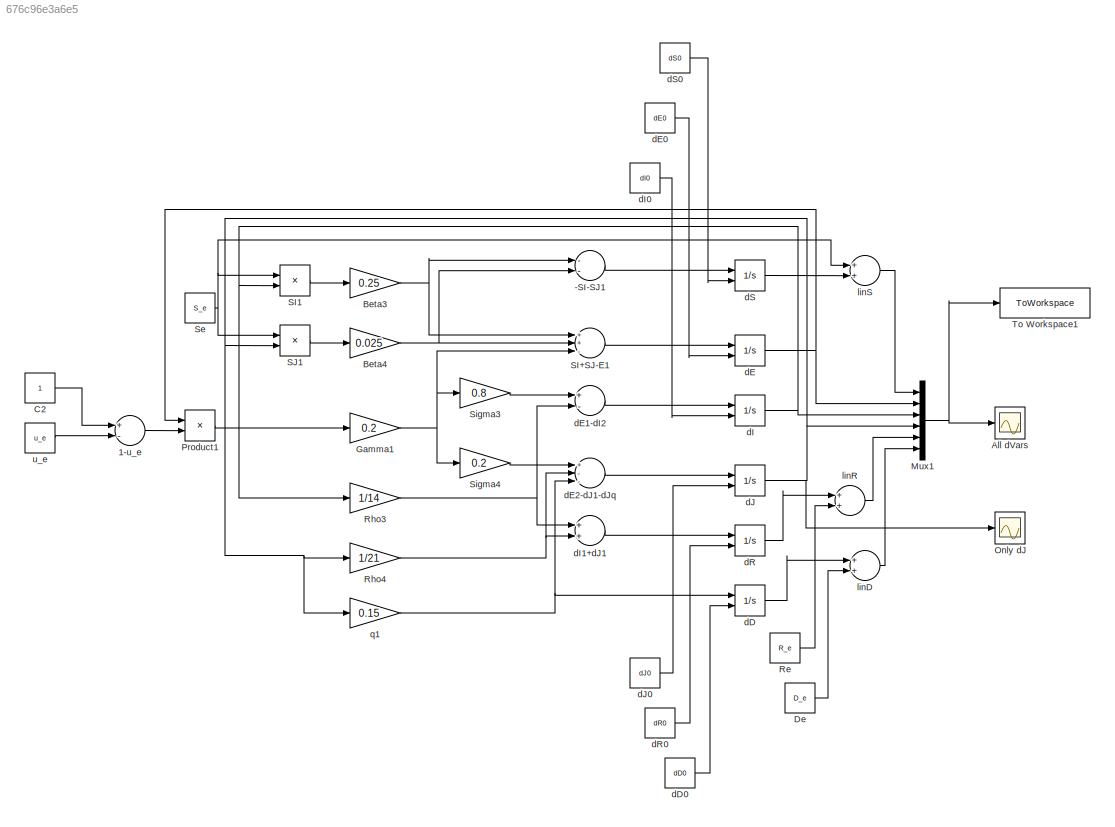
MODEL slx_676c96e3a6e5
KIND model
CONFIG AbsTol = auto
CONFIG EnableMultiTasking = off
CONFIG FixedStep = auto
CONFIG MaxStep = auto
CONFIG MinStep = auto
CONFIG RelTol = 1e-6
CONFIG SampleTimeConstraint = Unconstrained
CONFIG Solver = VariableStepAuto
CONFIG SolverName = VariableStepAuto
CONFIG StartTime = 0.0
CONFIG StopTime = 15
BLOCK [Sum] -SI-SJ1
  InputSameDT = off
  Inputs = --
  OutDataTypeStr = Inherit: Inherit via internal rule
  Ports = [2, 1]
  SaturateOnIntegerOverflow = off
BLOCK [Sum] 1-u_e
  InputSameDT = off
  Inputs = +-
  OutDataTypeStr = Inherit: Inherit via internal rule
  Ports = [2, 1]
  SaturateOnIntegerOverflow = off
BLOCK [Scope] All dVars
  Floating = off
  NumInputPorts = 1
  Ports = [1]
  ScopeSpecificationString = Simulink.scopes.TimeScopeBlockCfg('CurrentConfiguration', extmgr.ConfigurationSet(extmgr.Configuration('Core','General UI',true),extmgr.Configuration('Core','Source UI',true),extmgr.Configuration('Sources','WiredSimulink',true,'DataLoggingVariableName','ScopeData1'),extmgr.Configuration('Visuals','Time Domain',true,'SerializedDisplays',{struct('MinYLimReal','-0.1','MaxYLimReal','0.9','YLabelReal',...<+1391ch>
BLOCK [Gain] Beta3
  Gain = 0.25
  OutDataTypeStr = Inherit: Inherit via internal rule
  ParamDataTypeStr = Inherit: Inherit via internal rule
  SaturateOnIntegerOverflow = off
BLOCK [Gain] Beta4
  Gain = 0.025
  OutDataTypeStr = Inherit: Inherit via internal rule
  ParamDataTypeStr = Inherit: Inherit via internal rule
  SaturateOnIntegerOverflow = off
BLOCK [Constant] C2
BLOCK [Constant] De
  Value = D_e
BLOCK [Gain] Gamma1
  Gain = 0.2
  OutDataTypeStr = Inherit: Inherit via internal rule
  ParamDataTypeStr = Inherit: Inherit via internal rule
  SaturateOnIntegerOverflow = off
BLOCK [Mux] Mux1
  DisplayOption = bar
  Inputs = 6
  Ports = [6, 1]
BLOCK [Scope] Only dJ
  Floating = off
  NumInputPorts = 1
  Ports = [1]
  ScopeSpecificationString = Simulink.scopes.TimeScopeBlockCfg('CurrentConfiguration', extmgr.ConfigurationSet(extmgr.Configuration('Core','General UI',true),extmgr.Configuration('Core','Source UI',true),extmgr.Configuration('Sources','WiredSimulink',true,'DataLoggingVariableName','ScopeData2'),extmgr.Configuration('Visuals','Time Domain',true,'SerializedDisplays',{struct('MinYLimReal','0.0039','MaxYLimReal','0.01487','YLabel...<+1384ch>
BLOCK [Product] Product1
  InputSameDT = off
  OutDataTypeStr = Inherit: Inherit via internal rule
  Ports = [2, 1]
  RndMeth = Floor
  SaturateOnIntegerOverflow = off
BLOCK [Constant] Re
  Value = R_e
BLOCK [Gain] Rho3
  Gain = 1/14
  OutDataTypeStr = Inherit: Inherit via internal rule
  ParamDataTypeStr = Inherit: Inherit via internal rule
  SaturateOnIntegerOverflow = off
BLOCK [Gain] Rho4
  Gain = 1/21
  OutDataTypeStr = Inherit: Inherit via internal rule
  ParamDataTypeStr = Inherit: Inherit via internal rule
  SaturateOnIntegerOverflow = off
BLOCK [Sum] SI+SJ-E1
  InputSameDT = off
  Inputs = ++-
  OutDataTypeStr = Inherit: Inherit via internal rule
  Ports = [3, 1]
  SaturateOnIntegerOverflow = off
BLOCK [Product] SI1
  InputSameDT = off
  OutDataTypeStr = Inherit: Inherit via internal rule
  Ports = [2, 1]
  RndMeth = Floor
  SaturateOnIntegerOverflow = off
BLOCK [Product] SJ1
  InputSameDT = off
  OutDataTypeStr = Inherit: Inherit via internal rule
  Ports = [2, 1]
  RndMeth = Floor
  SaturateOnIntegerOverflow = off
BLOCK [Constant] Se
  Value = S_e
BLOCK [Gain] Sigma3
  Gain = 0.8
  OutDataTypeStr = Inherit: Inherit via internal rule
  ParamDataTypeStr = Inherit: Inherit via internal rule
  SaturateOnIntegerOverflow = off
BLOCK [Gain] Sigma4
  Gain = 0.2
  OutDataTypeStr = Inherit: Inherit via internal rule
  ParamDataTypeStr = Inherit: Inherit via internal rule
  SaturateOnIntegerOverflow = off
BLOCK [ToWorkspace] To Workspace1
  FixptAsFi = on
  MaxDataPoints = inf
  Ports = [1]
  SampleTime = -1
  SaveFormat = Timeseries
  VariableName = sim_data1
BLOCK [Integrator] dD
  InitialConditionSource = external
  Ports = [2, 1]
BLOCK [Constant] dD0
  Value = dD0
BLOCK [Integrator] dE
  InitialConditionSource = external
  Ports = [2, 1]
BLOCK [Constant] dE0
  Value = dE0
BLOCK [Sum] dE1-dI2
  InputSameDT = off
  Inputs = +-
  OutDataTypeStr = Inherit: Inherit via internal rule
  Ports = [2, 1]
  SaturateOnIntegerOverflow = off
BLOCK [Sum] dE2-dJ1-dJq
  InputSameDT = off
  Inputs = +--
  OutDataTypeStr = Inherit: Inherit via internal rule
  Ports = [3, 1]
  SaturateOnIntegerOverflow = off
BLOCK [Integrator] dI
  InitialConditionSource = external
  Ports = [2, 1]
BLOCK [Constant] dI0
  Value = dI0
BLOCK [Sum] dI1+dJ1
  InputSameDT = off
  OutDataTypeStr = Inherit: Inherit via internal rule
  Ports = [2, 1]
  SaturateOnIntegerOverflow = off
BLOCK [Integrator] dJ
  InitialConditionSource = external
  Ports = [2, 1]
BLOCK [Constant] dJ0
  Value = dJ0
BLOCK [Integrator] dR
  InitialConditionSource = external
  Ports = [2, 1]
BLOCK [Constant] dR0
  Value = dR0
BLOCK [Integrator] dS
  InitialConditionSource = external
  Ports = [2, 1]
BLOCK [Constant] dS0
  Value = dS0
BLOCK [Sum] linD
  InputSameDT = off
  OutDataTypeStr = Inherit: Inherit via internal rule
  Ports = [2, 1]
  SaturateOnIntegerOverflow = off
BLOCK [Sum] linR
  InputSameDT = off
  OutDataTypeStr = Inherit: Inherit via internal rule
  Ports = [2, 1]
  SaturateOnIntegerOverflow = off
BLOCK [Sum] linS
  InputSameDT = off
  OutDataTypeStr = Inherit: Inherit via internal rule
  Ports = [2, 1]
  SaturateOnIntegerOverflow = off
BLOCK [Gain] q1
  Gain = 0.15
  OutDataTypeStr = Inherit: Inherit via internal rule
  ParamDataTypeStr = Inherit: Inherit via internal rule
  SaturateOnIntegerOverflow = off
BLOCK [Constant] u_e
  Value = u_e
LINE -SI-SJ1:1 -> dS:1
LINE 1-u_e:1 -> Product1:2
NET Beta3:1 -> -SI-SJ1:1, SI+SJ-E1:1
NET Beta4:1 -> -SI-SJ1:2, SI+SJ-E1:2
LINE C2:1 -> 1-u_e:1
LINE De:1 -> linD:2
NET Gamma1:1 -> SI+SJ-E1:3, Sigma3:1, Sigma4:1
NET Mux1:1 -> All dVars:1, To Workspace1:1
LINE Product1:1 -> Gamma1:1
LINE Re:1 -> linR:2
NET Rho3:1 -> dE1-dI2:2, dI1+dJ1:1
NET Rho4:1 -> dE2-dJ1-dJq:2, dI1+dJ1:2
LINE SI+SJ-E1:1 -> dE:1
LINE SI1:1 -> Beta3:1
LINE SJ1:1 -> Beta4:1
NET Se:1 -> SI1:1, SJ1:1, linS:1
LINE Sigma3:1 -> dE1-dI2:1
LINE Sigma4:1 -> dE2-dJ1-dJq:1
LINE dD0:1 -> dD:2
LINE dD:1 -> linD:1
LINE dE0:1 -> dE:2
LINE dE1-dI2:1 -> dI:1
LINE dE2-dJ1-dJq:1 -> dJ:1
NET dE:1 -> Mux1:2, Product1:1
LINE dI0:1 -> dI:2
LINE dI1+dJ1:1 -> dR:1
NET dI:1 -> Mux1:3, Rho3:1, SI1:2
LINE dJ0:1 -> dJ:2
NET dJ:1 -> Mux1:4, Only dJ:1, Rho4:1, SJ1:2, q1:1
LINE dR0:1 -> dR:2
LINE dR:1 -> linR:1
LINE dS0:1 -> dS:2
LINE dS:1 -> linS:2
LINE linD:1 -> Mux1:6
LINE linR:1 -> Mux1:5
LINE linS:1 -> Mux1:1
NET q1:1 -> dD:1, dE2-dJ1-dJq:3
LINE u_e:1 -> 1-u_e:2
note: NET lines group one-source signal fan-out (src -> all destinations, sorted); 1:1 wires keep LINE
